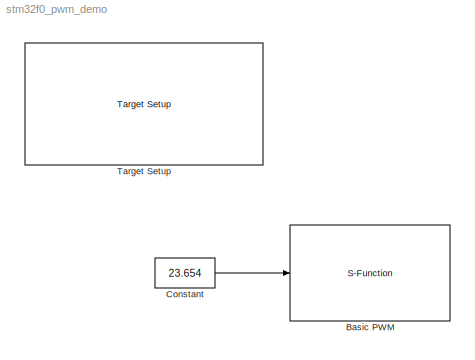
MODEL stm32f0_pwm_demo
KIND model
CONFIG PreLoadFcn = waijung.modelPreload; % Required for working with Waijung Blockset. Do not remove.
BLOCK [S-Function] Basic PWM
  EnableBusSupport = off
  FunctionName = stm32f0_tim
  MaskCallbackString = stm32f0_tim_callback('conf');|stm32f0_tim_callback('timer');|||||||stm32f0_tim_callback('sampletime');|stm32f0_tim_callback('enablecustomportlabel');|stm32f0_tim_callback('conf');|stm32f0_tim_callback('conf');||stm32f0_tim_callback('blockid');||||||||
  MaskDisplay = text(0.95, 0.5, 'Timer: 17\\nPolarity: Active High\\nPeriod (sec): 0.02\\nTs (sec): 0.1','ver','middle','hor','right'); port_label('input', 1,'CH1(A7)');
  MaskEnableString = on,on,on,on,on,off,off,off,on,on,on,on,on,off,on,on,on,on,on,on,on,on
  MaskHelp = web(fullfile(waijungdocroot,'stm32f0_tim.htm'), '-browser')
  MaskIconFrame = on
  MaskIconOpaque = on
  MaskIconRotate = none
  MaskIconUnits = normalized
  MaskInitialization = stm32f0_tim_callback('init');
  MaskPortRotate = default
  MaskPromptString = Configuration|Timer|PWM Period (seconds)|Polarity|Channel 1|Channel 2|Channel 3|Channel 4|Sample time (sec)|Enable custom port labels (Ex. In1, In2, In3)|Custom input port labels (Ex. In1, In2, In3)|Custom output port labels (Ex. Out1, Out2, Out3)|Port Pin String|Block ID|Input Port Type|Input Port Width|Input Port Label|Output Port Type|Output Port Width|Output port label|Compatibility (Reserved ...<+45ch>
  MaskSelfModifiable = on
  MaskStyleString = popup(pwm),popup(1|2|3|14|15|16|17),edit,popup(Active High|Active Low),popup(Not available - Do not use|A7|B9),popup(Not available - Do not use),popup(Not available - Do not use),popup(Not available - Do not use),edit,checkbox,edit,edit,edit,edit,edit,edit,edit,edit,edit,edit,edit,edit
  MaskTabNameString = ,,,,,,,,,,,,,,,,,,,,,
  MaskToolTipString = on,on,on,on,on,on,on,on,on,on,on,on,on,on,on,on,on,on,on,on,on,on
  MaskTunableValueString = off,off,off,on,off,off,off,off,off,off,off,off,off,off,off,off,off,off,off,off,off,off
  MaskType = stm32f0_tim
  MaskValueString = pwm|17|0.02|Active High|A7|Not available - Do not use|Not available - Do not use|Not available - Do not use|inf|off|Motor1,Motor2||0|BasicPWM|[-1]|[]|{'CH1(A7)'}|[]|[]|{}|0|[\"17\",\"2\",\"0.02\",\"Active High\",\"1\",\"0\",\"0\",\"0\",\"A\",\"\",\"\",\"\",\"7\",\"\",\"\",\"\",\"5\",\"0\",\"0\",\"0\",\"1\",\"0\",\"0\",\"0\",\"0\",\"63999\",\"14\",\"TIM_OCPolarity_High\"]
  MaskVarAliasString = ,,,,,,,,,,,,,,,,,,,,,
  MaskVariables = conf=&1;timer=&2;period=&3;polarity=@4;ch1pin=&5;ch2pin=&6;ch3pin=&7;ch4pin=&8;sampletime=@9;enablecustomportlabel=@10;cinputportlabel=&11;coutputportlabel=&12;portpinstr=&13;blockid=&14;inputporttype=@15;inputportwidth=@16;inputportlabel=&17;outputporttype=@18;outputportwidth=@19;outputportlabel=&20;compat=&21;optionstring=&22;
  MaskVisibilityString = off,on,on,on,on,on,on,on,on,on,off,off,off,off,off,off,off,off,off,off,off,off
  Parameters = conf,inputporttype,inputportwidth,outputporttype,outputportwidth,optionstring,sampletime,blockid
  Ports = [1]
BLOCK [Constant] Constant
  OutDataType = fixdt(1, 16)
  OutScaling = 2^0
  Value = 23.654
BLOCK [Reference] Target Setup  REF=stm32f0_device_config_lib/Target Setup
  Ports = []
  Priority = 100
  SourceBlock = stm32f0_device_config_lib/Target Setup
  SourceType = stm32f0_target_setup
  assemblercontrolstr = $(patsubst %, -I%, .) -mcpu=cortex-m0 -mtune=cortex-m0 -mthumb -Wall -O3 -Wa,-amhls=$(<:.s=.lst) -D__STACK_SIZE=$(STACK_SIZE) -D__HEAP_SIZE=$(HEAP_SIZE)
  blockid = TargetSetup
  clockconfig = STM32F072B-DISCO Default (HSIOSC-8MHz/HCLK-48MHz)
  compiler = GNU ARM
  compilercontrolstr = $(patsubst %, -I%, .) -mcpu=cortex-m0 -mthumb -mabi=aapcs -Wall -O3 -mfloat-abi=soft -ffunction-sections -fdata-sections -fno-strict-aliasing -fno-builtin --short-enums
  editctrlstr = on
  enableautocompiledownload = on
  execprofile = None
  flashlength = 128k
  flashorigin = 0x8000000
  fullchiperase = off
  hclk = 48000000
  heapsize = 0x200
  hseval = 8000000
  lastprofileruart = 3
  linkercontrolstr = -T$(LD_SCRIPT) -Wl,-Map=$(MAP),--cref,--no-warn-mismatch -mcpu=cortex-m0 -mthumb  -Wall -O3 -mabi=aapcs -lc -specs=nosys.specs
  manualsetsampletime = off
  mcu = STM32F072CB (LQFP48)
  mcustr = STM32F072CB
  previous_compiler = GNU ARM
  profilerbaud = 500000
  profilerinitstr = 0.1,48000000,4800000,500000,0
  profilertxpin = Not used
  profileruart = 3
  programmerinterface = aMG USB Connect
  ramlength = 16k
  ramorigin = 0x20000000
  runafterdownload = on
  sampletime = 0.1
  showmemoryconfiguration = on
  stacksize = 0x400
  stdlib = STM32F072
  system_stm32f0xx_c_path = <path>
  systickreloadvalue = 4800000
  useextram = off
LINE Constant:1 -> Basic PWM:1
note: 1 file-system path scrubbed to <path> (not preserved elsewhere — flat text is the only slx artifact)
